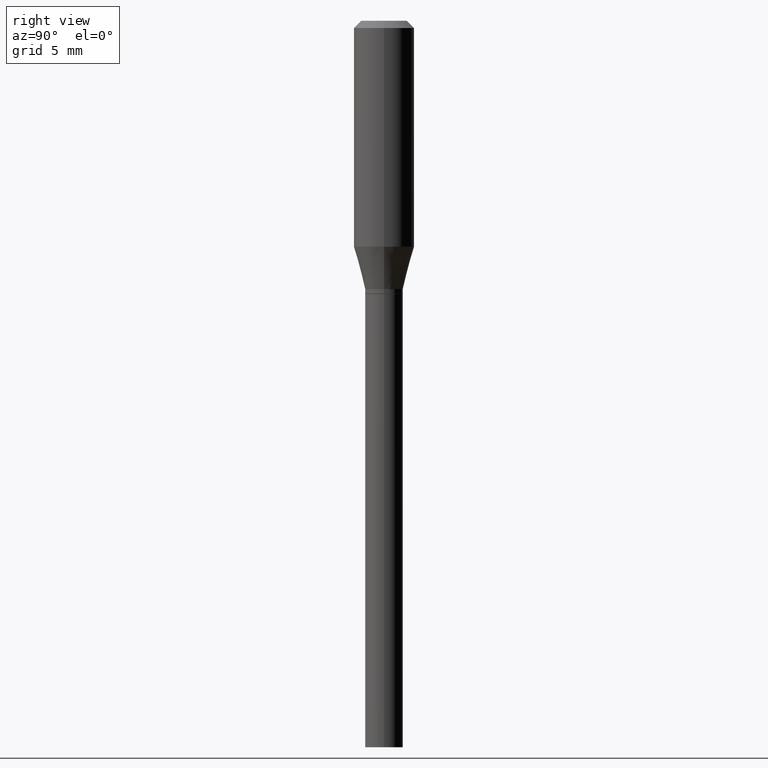
[diagram: clean part render]
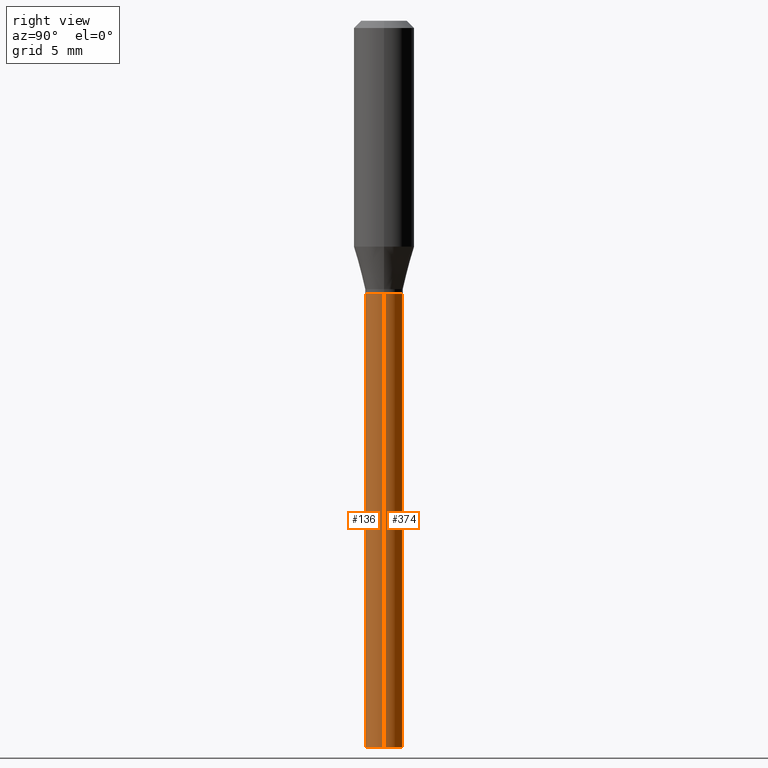
[diagram: same view with one multi-face feature highlighted, each face labeled with its STEP entity id]
A machine part, right view. The highlighted faces form ONE feature: a constant-radius fillet chain: 2 tangent blend faces with common blend radius 0.9906 mm. The faces share edges in the B-rep.
Their STEP definitions:
[1] entity #136 (Cylinder):
#7 = DIRECTION ( 'NONE',  ( 1.000000000000000000, -6.982962677686270655E-15, 0.000000000000000000 ) ) ;
#20 = CARTESIAN_POINT ( 'NONE',  ( -0.03899999999999999994, -3.326097074739686831E-15, -1.500000000000000222 ) ) ;
#21 = DIRECTION ( 'NONE',  ( -2.445468806185136597E-29, 3.491481338843145583E-15, 1.000000000000000000 ) ) ;
#29 = EDGE_LOOP ( 'NONE', ( #240, #182, #103, #371 ) ) ;
#77 = CARTESIAN_POINT ( 'NONE',  ( 3.668203209277704895E-29, -5.237222008264718177E-15, -1.500000000000000222 ) ) ;
#81 = VERTEX_POINT ( 'NONE', #20 ) ;
#91 = FACE_OUTER_BOUND ( 'NONE', #29, .T. ) ;
#103 = ORIENTED_EDGE ( 'NONE', *, *, #122, .T. ) ;
#113 = CARTESIAN_POINT ( 'NONE',  ( -0.03899999999999999994, 2.771116669464390721E-16, -1.918384685199413078E-30 ) ) ;
#119 = CARTESIAN_POINT ( 'NONE',  ( 0.03899999999999999994, -2.241531019537298935E-15, -0.5640000000000000568 ) ) ;
#122 = EDGE_CURVE ( 'NONE', #464, #401, #187, .T. ) ;
#124 = CARTESIAN_POINT ( 'NONE',  ( 0.03899999999999999994, -5.509557552694482989E-15, -1.500000000000000222 ) ) ;
#128 = CARTESIAN_POINT ( 'NONE',  ( 0.03899999999999999994, -2.723355444297643682E-16, 1.901708942560414931E-30 ) ) ;
#136 = ADVANCED_FACE ( 'NONE', ( #91 ), #262, .T. ) ;
#163 = EDGE_CURVE ( 'NONE', #81, #464, #208, .T. ) ;
#177 = VECTOR ( 'NONE', #282, 39.37007874015748143 ) ;
#182 = ORIENTED_EDGE ( 'NONE', *, *, #163, .T. ) ;
#187 = LINE ( 'NONE', #128, #267 ) ;
#208 = CIRCLE ( 'NONE', #280, 0.03899999999999999994 ) ;
#210 = DIRECTION ( 'NONE',  ( -2.445468806185136597E-29, 3.491481338843145583E-15, 1.000000000000000000 ) ) ;
#231 = CARTESIAN_POINT ( 'NONE',  ( 0.000000000000000000, 0.000000000000000000, 0.000000000000000000 ) ) ;
#236 = AXIS2_PLACEMENT_3D ( 'NONE', #231, #354, #289 ) ;
#240 = ORIENTED_EDGE ( 'NONE', *, *, #334, .F. ) ;
#241 = AXIS2_PLACEMENT_3D ( 'NONE', #411, #21, #7 ) ;
#262 = CYLINDRICAL_SURFACE ( 'NONE', #236, 0.03899999999999999994 ) ;
#265 = DIRECTION ( 'NONE',  ( -2.445468806185136877E-29, 3.491481338843145188E-15, 1.000000000000000000 ) ) ;
#267 = VECTOR ( 'NONE', #265, 39.37007874015748143 ) ;
#268 = CIRCLE ( 'NONE', #241, 0.03899999999999999994 ) ;
#280 = AXIS2_PLACEMENT_3D ( 'NONE', #77, #210, #399 ) ;
#282 = DIRECTION ( 'NONE',  ( -2.445468806185136877E-29, 3.491481338843145188E-15, 1.000000000000000000 ) ) ;
#289 = DIRECTION ( 'NONE',  ( 1.000000000000000000, -6.982962677686265922E-15, 4.876176775795935793E-29 ) ) ;
#307 = VERTEX_POINT ( 'NONE', #388 ) ;
#334 = EDGE_CURVE ( 'NONE', #81, #307, #350, .T. ) ;
#350 = LINE ( 'NONE', #113, #177 ) ;
#354 = DIRECTION ( 'NONE',  ( -2.445468806185136597E-29, 3.491481338843145583E-15, 1.000000000000000000 ) ) ;
#371 = ORIENTED_EDGE ( 'NONE', *, *, #438, .F. ) ;
#388 = CARTESIAN_POINT ( 'NONE',  ( -0.03899999999999999994, -3.326097074739686831E-15, -0.5640000000000000568 ) ) ;
#399 = DIRECTION ( 'NONE',  ( 1.000000000000000000, -6.982962677686258033E-15, 0.000000000000000000 ) ) ;
#401 = VERTEX_POINT ( 'NONE', #119 ) ;
#411 = CARTESIAN_POINT ( 'NONE',  ( 1.379244406688417180E-29, -1.969195475107534123E-15, -0.5640000000000000568 ) ) ;
#438 = EDGE_CURVE ( 'NONE', #307, #401, #268, .T. ) ;
#464 = VERTEX_POINT ( 'NONE', #124 ) ;
[2] entity #374 (Cylinder):
#20 = CARTESIAN_POINT ( 'NONE',  ( -0.03899999999999999994, -3.326097074739686831E-15, -1.500000000000000222 ) ) ;
#44 = CIRCLE ( 'NONE', #129, 0.03899999999999999994 ) ;
#52 = CYLINDRICAL_SURFACE ( 'NONE', #281, 0.03899999999999999994 ) ;
#81 = VERTEX_POINT ( 'NONE', #20 ) ;
#88 = ORIENTED_EDGE ( 'NONE', *, *, #122, .F. ) ;
#113 = CARTESIAN_POINT ( 'NONE',  ( -0.03899999999999999994, 2.771116669464390721E-16, -1.918384685199413078E-30 ) ) ;
#119 = CARTESIAN_POINT ( 'NONE',  ( 0.03899999999999999994, -2.241531019537298935E-15, -0.5640000000000000568 ) ) ;
#122 = EDGE_CURVE ( 'NONE', #464, #401, #187, .T. ) ;
#124 = CARTESIAN_POINT ( 'NONE',  ( 0.03899999999999999994, -5.509557552694482989E-15, -1.500000000000000222 ) ) ;
#128 = CARTESIAN_POINT ( 'NONE',  ( 0.03899999999999999994, -2.723355444297643682E-16, 1.901708942560414931E-30 ) ) ;
#129 = AXIS2_PLACEMENT_3D ( 'NONE', #421, #195, #272 ) ;
#177 = VECTOR ( 'NONE', #282, 39.37007874015748143 ) ;
#187 = LINE ( 'NONE', #128, #267 ) ;
#195 = DIRECTION ( 'NONE',  ( -2.445468806185136597E-29, 3.491481338843145583E-15, 1.000000000000000000 ) ) ;
#259 = FACE_OUTER_BOUND ( 'NONE', #279, .T. ) ;
#265 = DIRECTION ( 'NONE',  ( -2.445468806185136877E-29, 3.491481338843145188E-15, 1.000000000000000000 ) ) ;
#267 = VECTOR ( 'NONE', #265, 39.37007874015748143 ) ;
#272 = DIRECTION ( 'NONE',  ( 1.000000000000000000, -6.982962677686270655E-15, 0.000000000000000000 ) ) ;
#279 = EDGE_LOOP ( 'NONE', ( #345, #452, #314, #88 ) ) ;
#281 = AXIS2_PLACEMENT_3D ( 'NONE', #418, #377, #450 ) ;
#282 = DIRECTION ( 'NONE',  ( -2.445468806185136877E-29, 3.491481338843145188E-15, 1.000000000000000000 ) ) ;
#286 = EDGE_CURVE ( 'NONE', #464, #81, #384, .T. ) ;
#307 = VERTEX_POINT ( 'NONE', #388 ) ;
#314 = ORIENTED_EDGE ( 'NONE', *, *, #346, .F. ) ;
#334 = EDGE_CURVE ( 'NONE', #81, #307, #350, .T. ) ;
#342 = DIRECTION ( 'NONE',  ( -2.445468806185136597E-29, 3.491481338843145583E-15, 1.000000000000000000 ) ) ;
#345 = ORIENTED_EDGE ( 'NONE', *, *, #286, .T. ) ;
#346 = EDGE_CURVE ( 'NONE', #401, #307, #44, .T. ) ;
#350 = LINE ( 'NONE', #113, #177 ) ;
#374 = ADVANCED_FACE ( 'NONE', ( #259 ), #52, .T. ) ;
#377 = DIRECTION ( 'NONE',  ( -2.445468806185136597E-29, 3.491481338843145583E-15, 1.000000000000000000 ) ) ;
#378 = CARTESIAN_POINT ( 'NONE',  ( 3.668203209277704895E-29, -5.237222008264718177E-15, -1.500000000000000222 ) ) ;
#384 = CIRCLE ( 'NONE', #458, 0.03899999999999999994 ) ;
#388 = CARTESIAN_POINT ( 'NONE',  ( -0.03899999999999999994, -3.326097074739686831E-15, -0.5640000000000000568 ) ) ;
#401 = VERTEX_POINT ( 'NONE', #119 ) ;
#418 = CARTESIAN_POINT ( 'NONE',  ( 0.000000000000000000, 0.000000000000000000, 0.000000000000000000 ) ) ;
#421 = CARTESIAN_POINT ( 'NONE',  ( 1.379244406688417180E-29, -1.969195475107534123E-15, -0.5640000000000000568 ) ) ;
#450 = DIRECTION ( 'NONE',  ( 1.000000000000000000, -6.982962677686265922E-15, 4.876176775795935793E-29 ) ) ;
#452 = ORIENTED_EDGE ( 'NONE', *, *, #334, .T. ) ;
#455 = DIRECTION ( 'NONE',  ( 1.000000000000000000, -6.982962677686258033E-15, 0.000000000000000000 ) ) ;
#458 = AXIS2_PLACEMENT_3D ( 'NONE', #378, #342, #455 ) ;
#464 = VERTEX_POINT ( 'NONE', #124 ) ;